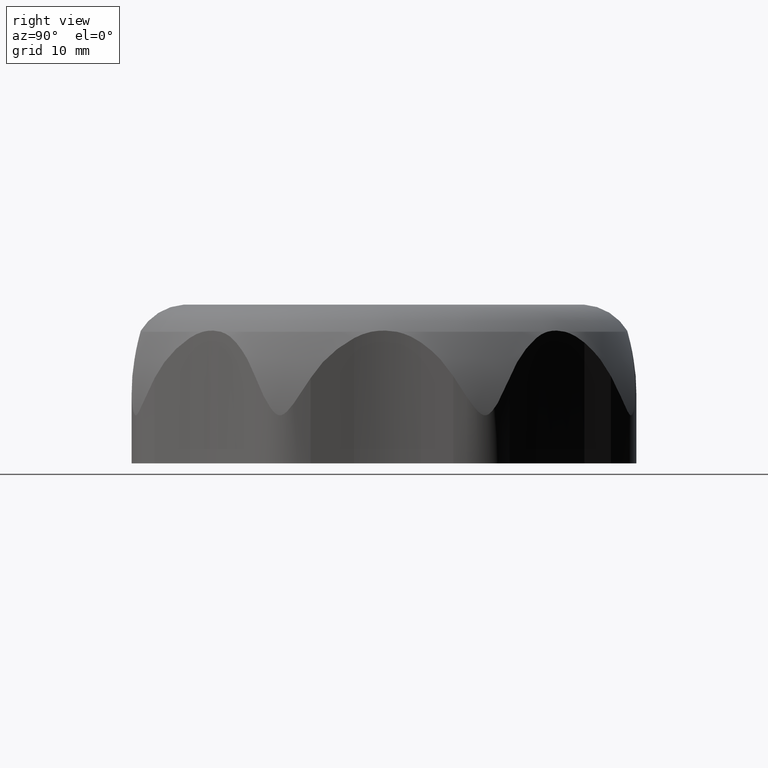
[diagram: clean part render]
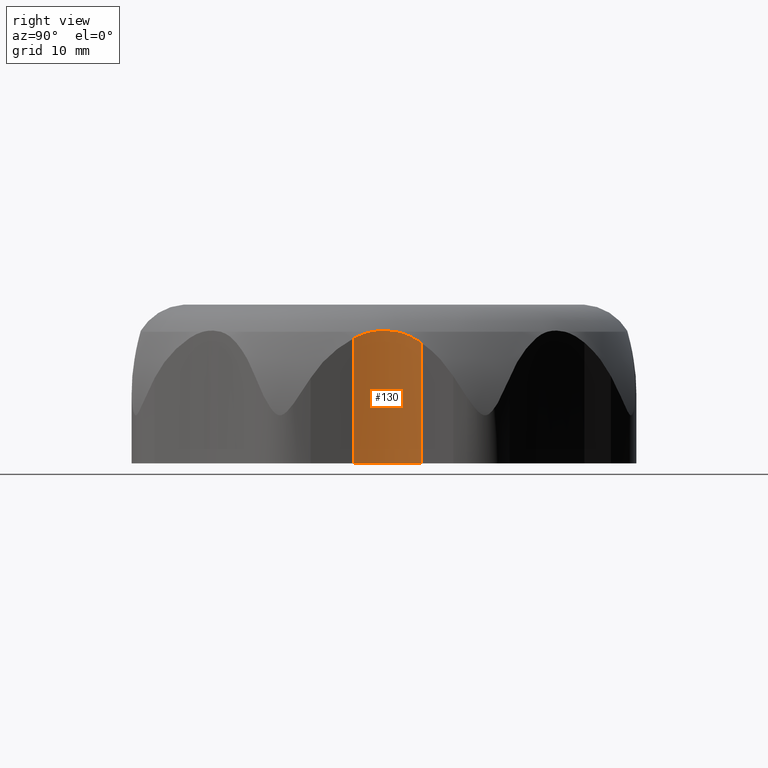
[diagram: same view with one face highlighted and labeled with its STEP entity id]
A machine part, right view. The second image highlights one B-rep face of the part: STEP entity #130.
In plain terms, the highlighted cylindrical surface (partial cylindrical patch) has radius 27.7 mm, axis along (0, 0, 1).
Its self-contained STEP definition (entity closure, byte-faithful):
#130 = ADVANCED_FACE( '', ( #2540 ), #2541, .F. );
#2540 = FACE_OUTER_BOUND( '', #7275, .T. );
#2541 = CYLINDRICAL_SURFACE( '', #7276, 27.7000000000000 );
#7275 = EDGE_LOOP( '', ( #12587, #12588, #12589, #12590, #12591, #12592 ) );
#7276 = AXIS2_PLACEMENT_3D( '', #12593, #12594, #12595 );
#12587 = ORIENTED_EDGE( '', *, *, #33304, .T. );
#12588 = ORIENTED_EDGE( '', *, *, #33116, .T. );
#12589 = ORIENTED_EDGE( '', *, *, #33305, .F. );
#12590 = ORIENTED_EDGE( '', *, *, #33306, .T. );
#12591 = ORIENTED_EDGE( '', *, *, #33307, .T. );
#12592 = ORIENTED_EDGE( '', *, *, #33308, .T. );
#12593 = CARTESIAN_POINT( '', ( 58.0000000761077, 1.15058677863100E-007, 115.096924112570 ) );
#12594 = DIRECTION( '', ( 0.000000000000000, 0.000000000000000, 1.00000000000000 ) );
#12595 = DIRECTION( '', ( 0.605400036454186, 0.795921350298677, 0.000000000000000 ) );
#33116 = EDGE_CURVE( '', #40160, #40158, #40161, .F. );
#33304 = EDGE_CURVE( '', #40484, #40160, #40485, .T. );
#33305 = EDGE_CURVE( '', #40486, #40158, #40487, .T. );
#33306 = EDGE_CURVE( '', #40486, #40488, #40489, .T. );
#33307 = EDGE_CURVE( '', #40488, #40490, #40491, .T. );
#33308 = EDGE_CURVE( '', #40490, #40484, #40492, .T. );
#40158 = VERTEX_POINT( '', #51944 );
#40160 = VERTEX_POINT( '', #51947 );
#40161 = CIRCLE( '', #51948, 27.7000000000000 );
#40484 = VERTEX_POINT( '', #52591 );
#40485 = LINE( '', #52592, #52593 );
#40486 = VERTEX_POINT( '', #52594 );
#40487 = LINE( '', #52595, #52596 );
#40488 = VERTEX_POINT( '', #52597 );
#40489 = B_SPLINE_CURVE_WITH_KNOTS( '', 3, ( #52598, #52599, #52600, #52601, #52602, #52603, #52604, #52605 ), .UNSPECIFIED., .F., .F., ( 4, 2, 2, 4 ), ( 2.83829919773258E-007, 0.00166748757108939, 0.00250108944167420, 0.00333469131225901 ), .UNSPECIFIED. );
#40490 = VERTEX_POINT( '', #52606 );
#40491 = B_SPLINE_CURVE_WITH_KNOTS( '', 3, ( #52607, #52608, #52609, #52610, #52611 ), .UNSPECIFIED., .F., .F., ( 4, 1, 4 ), ( 1.03941193487638E-006, 0.00160623249726146, 0.00321142558258805 ), .UNSPECIFIED. );
#40492 = B_SPLINE_CURVE_WITH_KNOTS( '', 3, ( #52612, #52613, #52614, #52615 ), .UNSPECIFIED., .F., .F., ( 4, 4 ), ( 9.44199023252013E-007, 0.00227780639784289 ), .UNSPECIFIED. );
#51944 = CARTESIAN_POINT( '', ( 30.6903740519198, 4.63404008240799, -3.88386123990891E-005 ) );
#51947 = CARTESIAN_POINT( '', ( 30.5525172660358, -3.73171361871048, -3.88386123990891E-005 ) );
#51948 = AXIS2_PLACEMENT_3D( '', #81121, #81122, #81123 );
#52591 = CARTESIAN_POINT( '', ( 30.5525172660358, -3.73171361871048, 15.6128215380933 ) );
#52592 = CARTESIAN_POINT( '', ( 30.5525172660358, -3.73171361871048, 115.096924112570 ) );
#52593 = VECTOR( '', #81364, 1000.00000000000 );
#52594 = CARTESIAN_POINT( '', ( 30.6903740519171, 4.63404008239225, 15.0545908435467 ) );
#52595 = CARTESIAN_POINT( '', ( 30.6903740519193, 4.63404008240780, 115.096924112570 ) );
#52596 = VECTOR( '', #81365, 1000.00000000000 );
#52597 = CARTESIAN_POINT( '', ( 30.3465490195949, 1.60519314552727, 16.3999611273070 ) );
#52598 = CARTESIAN_POINT( '', ( 30.6903740519170, 4.63404008239235, 15.0545908435468 ) );
#52599 = CARTESIAN_POINT( '', ( 30.6130128522159, 4.17813002388776, 15.3757512655392 ) );
#52600 = CARTESIAN_POINT( '', ( 30.5433797123819, 3.69891276198758, 15.6510856508199 ) );
#52601 = CARTESIAN_POINT( '', ( 30.4555229837654, 2.94215423258440, 15.9905249232542 ) );
#52602 = CARTESIAN_POINT( '', ( 30.4290086576782, 2.68354892635013, 16.0913501806886 ) );
#52603 = CARTESIAN_POINT( '', ( 30.3824864248422, 2.15265934026360, 16.2666060080996 ) );
#52604 = CARTESIAN_POINT( '', ( 30.3625261157348, 1.88043845106955, 16.3408575089078 ) );
#52605 = CARTESIAN_POINT( '', ( 30.3465490195951, 1.60519314552732, 16.3999611273073 ) );
#52606 = CARTESIAN_POINT( '', ( 30.3465490259637, -1.60519302512592, 16.3999611273070 ) );
#52607 = CARTESIAN_POINT( '', ( 30.3465490195951, 1.60519314552727, 16.3999606514965 ) );
#52608 = CARTESIAN_POINT( '', ( 30.3154902709884, 1.07012878369013, 16.5026337462953 ) );
#52609 = CARTESIAN_POINT( '', ( 30.2845098791041, 6.00776097706840E-008, 16.5965840674851 ) );
#52610 = CARTESIAN_POINT( '', ( 30.3154902752341, -1.07012866341200, 16.5026337462954 ) );
#52611 = CARTESIAN_POINT( '', ( 30.3465490259638, -1.60519302512592, 16.3999606514965 ) );
#52612 = CARTESIAN_POINT( '', ( 30.3465490259638, -1.60519302512597, 16.3999611273072 ) );
#52613 = CARTESIAN_POINT( '', ( 30.3900186212533, -2.35406510501118, 16.2391552978941 ) );
#52614 = CARTESIAN_POINT( '', ( 30.4613645221187, -3.06126739741989, 15.9730537199207 ) );
#52615 = CARTESIAN_POINT( '', ( 30.5525172660354, -3.73171361871095, 15.6128215380944 ) );
#81121 = CARTESIAN_POINT( '', ( 58.0000000761077, 1.15058677863100E-007, -3.88386123990891E-005 ) );
#81122 = DIRECTION( '', ( 2.34318281388423E-017, -5.65694372839885E-017, 1.00000000000000 ) );
#81123 = DIRECTION( '', ( 0.382683432365090, -0.923879532511287, -6.12303176911189E-017 ) );
#81364 = DIRECTION( '', ( 0.000000000000000, 0.000000000000000, -1.00000000000000 ) );
#81365 = DIRECTION( '', ( 0.000000000000000, 0.000000000000000, -1.00000000000000 ) );